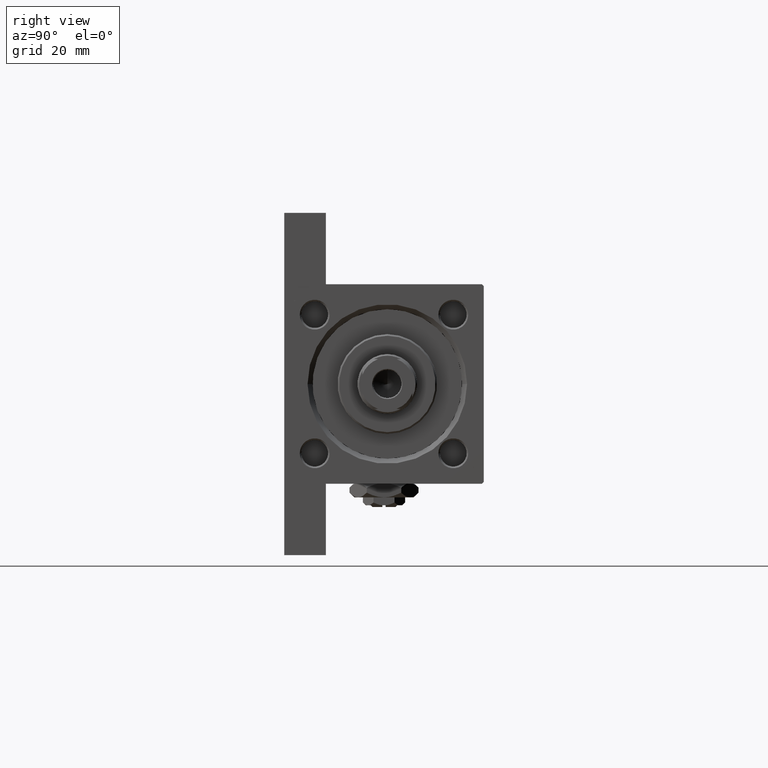
[diagram: clean part render]
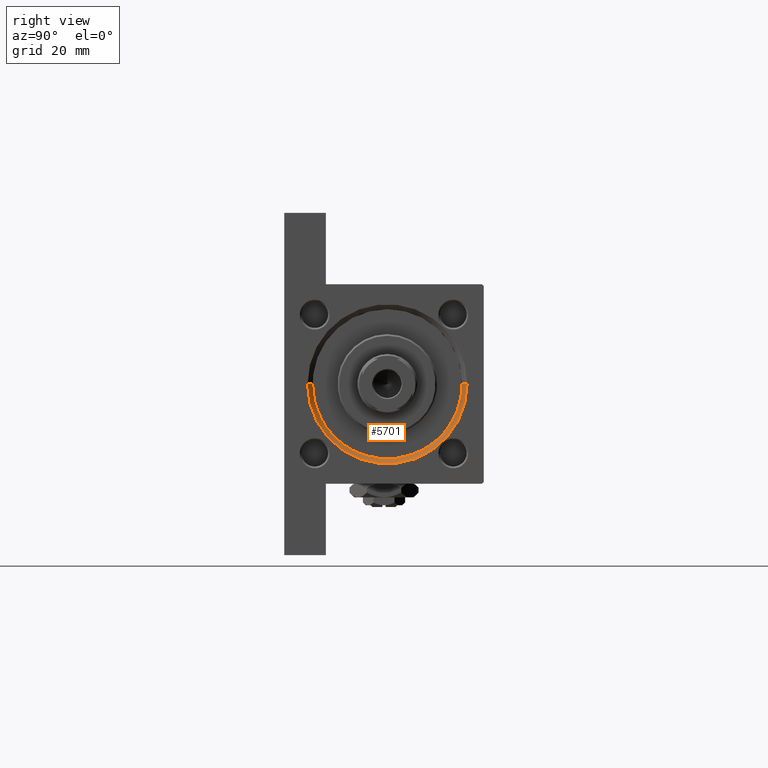
[diagram: same view with one face highlighted and labeled with its STEP entity id]
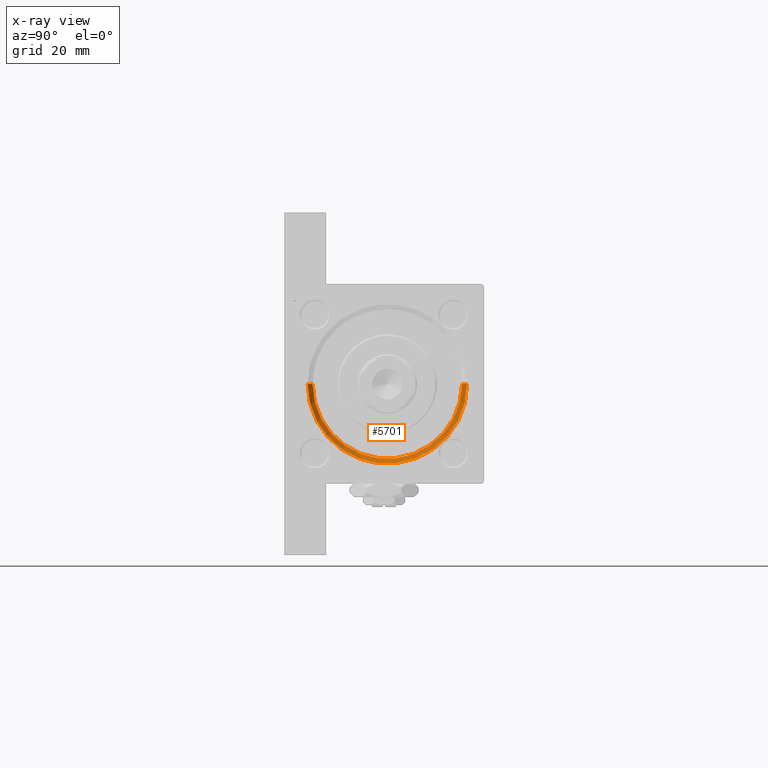
[diagram: x-ray of the same camera — body ghosted, the highlighted face saturated]
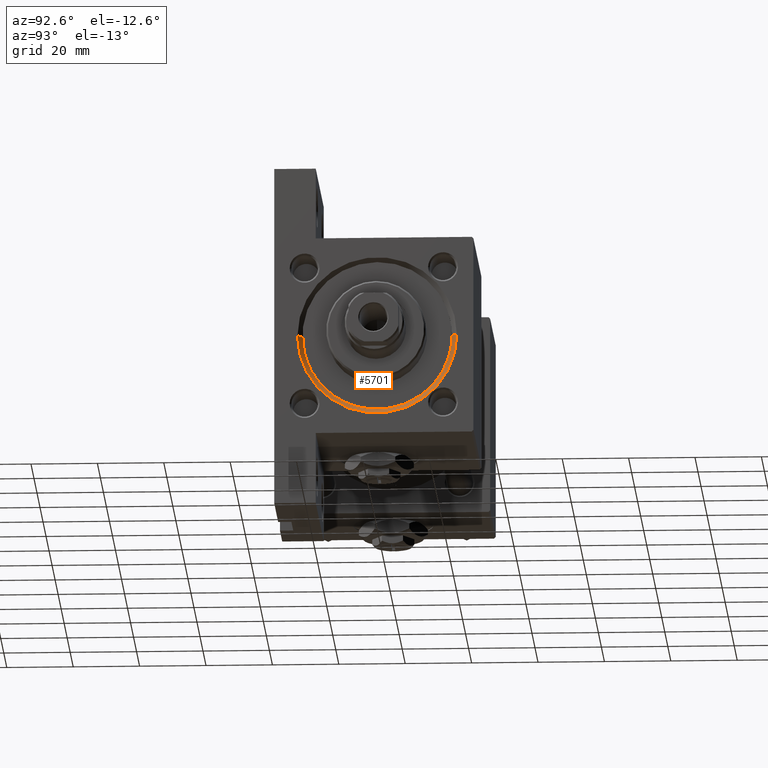
[diagram: same view with one face highlighted and labeled with its STEP entity id]
A machine part, right view. The second image highlights one B-rep face of the part: STEP entity #5701.
The next image is the same camera in x-ray: the body ghosted, the highlighted face saturated — about 0% of this face is hidden behind the body in this view.
A second angle (auxiliary view) of the same face is appended — the face is thin or edge-on in the first view.
In plain terms, the highlighted conical surface has half-angle 45 deg.
Its self-contained STEP definition (entity closure, byte-faithful):
#1225 = DIRECTION ( 'NONE',  ( 0.7071067811865524577, 8.659560562354874926E-17, 0.7071067811865426878 ) ) ;
#1728 = FACE_OUTER_BOUND ( 'NONE', #44711, .T. ) ;
#2487 = CARTESIAN_POINT ( 'NONE',  ( 146.4999999999999432, 0.000000000000000000, 1.000000000000007772 ) ) ;
#3504 = EDGE_CURVE ( 'NONE', #35479, #36452, #17391, .T. ) ;
#3754 = AXIS2_PLACEMENT_3D ( 'NONE', #6497, #34474, #26749 ) ;
#3858 = CARTESIAN_POINT ( 'NONE',  ( 146.4999999999999432, 0.000000000000000000, -21.49999999999999645 ) ) ;
#5701 = ADVANCED_FACE ( 'NONE', ( #1728 ), #45340, .F. ) ;
#6497 = CARTESIAN_POINT ( 'NONE',  ( 148.0000000000000000, 0.000000000000000000, 1.000000000000007772 ) ) ;
#7852 = CIRCLE ( 'NONE', #3754, 24.00000000000003908 ) ;
#17391 = CIRCLE ( 'NONE', #19862, 22.50000000000000355 ) ;
#18244 = EDGE_CURVE ( 'NONE', #38967, #18442, #7852, .T. ) ;
#18442 = VERTEX_POINT ( 'NONE', #31883 ) ;
#19862 = AXIS2_PLACEMENT_3D ( 'NONE', #48124, #20628, #36542 ) ;
#20254 = LINE ( 'NONE', #3858, #46486 ) ;
#20628 = DIRECTION ( 'NONE',  ( 1.000000000000000000, 0.000000000000000000, 0.000000000000000000 ) ) ;
#20726 = CARTESIAN_POINT ( 'NONE',  ( 146.4999999999999432, 2.755455298081545172E-15, 23.50000000000001066 ) ) ;
#20892 = EDGE_CURVE ( 'NONE', #35479, #18442, #20254, .T. ) ;
#21211 = DIRECTION ( 'NONE',  ( 0.000000000000000000, 0.000000000000000000, -1.000000000000000000 ) ) ;
#22538 = LINE ( 'NONE', #28188, #33204 ) ;
#24008 = ORIENTED_EDGE ( 'NONE', *, *, #3504, .F. ) ;
#26749 = DIRECTION ( 'NONE',  ( 0.000000000000000000, 0.000000000000000000, 1.000000000000000000 ) ) ;
#28188 = CARTESIAN_POINT ( 'NONE',  ( 146.4999999999999432, 2.755455298081545172E-15, 23.50000000000001066 ) ) ;
#29200 = ORIENTED_EDGE ( 'NONE', *, *, #20892, .T. ) ;
#31883 = CARTESIAN_POINT ( 'NONE',  ( 148.0000000000000000, 0.000000000000000000, -23.00000000000003197 ) ) ;
#32715 = EDGE_CURVE ( 'NONE', #36452, #38967, #22538, .T. ) ;
#33204 = VECTOR ( 'NONE', #1225, 1000.000000000000000 ) ;
#34474 = DIRECTION ( 'NONE',  ( -1.000000000000000000, 0.000000000000000000, -0.000000000000000000 ) ) ;
#34841 = CARTESIAN_POINT ( 'NONE',  ( 146.4999999999999432, 0.000000000000000000, -21.49999999999999645 ) ) ;
#35479 = VERTEX_POINT ( 'NONE', #34841 ) ;
#36452 = VERTEX_POINT ( 'NONE', #20726 ) ;
#36542 = DIRECTION ( 'NONE',  ( 0.000000000000000000, 0.000000000000000000, 1.000000000000000000 ) ) ;
#36939 = ORIENTED_EDGE ( 'NONE', *, *, #32715, .F. ) ;
#38967 = VERTEX_POINT ( 'NONE', #42075 ) ;
#41496 = DIRECTION ( 'NONE',  ( 1.000000000000000000, 0.000000000000000000, 0.000000000000000000 ) ) ;
#42075 = CARTESIAN_POINT ( 'NONE',  ( 148.0000000000000000, 2.939152317953652628E-15, 25.00000000000004619 ) ) ;
#42879 = AXIS2_PLACEMENT_3D ( 'NONE', #2487, #41496, #21211 ) ;
#43121 = DIRECTION ( 'NONE',  ( 0.7071067811865524577, 0.000000000000000000, -0.7071067811865426878 ) ) ;
#44711 = EDGE_LOOP ( 'NONE', ( #36939, #24008, #29200, #47522 ) ) ;
#45340 = CONICAL_SURFACE ( 'NONE', #42879, 22.50000000000000355, 0.7853981633974415066 ) ;
#46486 = VECTOR ( 'NONE', #43121, 1000.000000000000000 ) ;
#47522 = ORIENTED_EDGE ( 'NONE', *, *, #18244, .F. ) ;
#48124 = CARTESIAN_POINT ( 'NONE',  ( 146.4999999999999432, 0.000000000000000000, 1.000000000000007772 ) ) ;